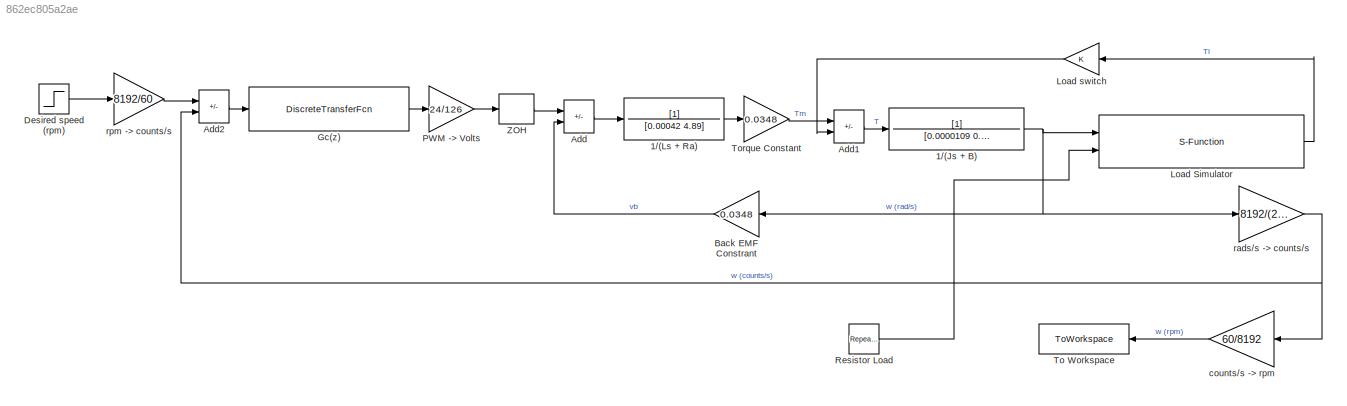
MODEL slx_862ec805a2ae
KIND model
CONFIG AbsTol = auto
CONFIG EnableMultiTasking = off
CONFIG FixedStep = auto
CONFIG MaxStep = auto
CONFIG MinStep = auto
CONFIG RelTol = 1e-3
CONFIG SampleTimeConstraint = Unconstrained
CONFIG Solver = VariableStepAuto
CONFIG SolverName = VariableStepAuto
CONFIG StartTime = 0.0
CONFIG StopTime = 9
BLOCK [TransferFcn] 1//(Js + B)
  Denominator = [0.0000109 0.0000464]
BLOCK [TransferFcn] 1//(Ls + Ra)
  Denominator = [0.00042 4.89]
BLOCK [Sum] Add
  IconShape = rectangular
  Inputs = +-
  Ports = [2, 1]
BLOCK [Sum] Add1
  IconShape = rectangular
  Inputs = +-
  Ports = [2, 1]
BLOCK [Sum] Add2
  IconShape = rectangular
  Inputs = +-
  Ports = [2, 1]
BLOCK [Gain] Back EMF Constrant
  Gain = 0.0348
BLOCK [Step] Desired speed (rpm)
  After = 2000
  SampleTime = 0.008
  Time = 0
BLOCK [DiscreteTransferFcn] Gc(z)
  Denominator = [1 -0.9199 -0.0801]
  InputPortMap = u0
  Numerator = [0.0001434 -0.0001159 0]
  Ports = [1, 1]
BLOCK [S-Function] Load Simulator 
  CopyFcn = set_param(gcbh,'LinkStatus','none')
  EnableBusSupport = off
  FunctionName = LoadSim
  InitFcn = try, set_param(gcb,'FunctionName','LoadSim'), end
  OpenFcn = sfunctionwizard(gcbh)
  Ports = [2, 1]
  PreSaveFcn = try, set_param(gcb,'FunctionName','LoadSim'), end
  SFcnIsStateOwnerBlock = off
  SFunctionDeploymentMode = off
  SFunctionModules = LoadSim_wrapper
BLOCK [Gain] Load switch
BLOCK [Gain] PWM -> Volts
  Gain = 24/126
BLOCK [Reference] Resistor Load  REF=simulink/Sources/Repeating
Sequence
Stair
  Ports = [0, 1]
  SourceBlock = simulink/Sources/Repeating\nSequence\nStair
  SourceProductBaseCode = SL
  SourceType = Repeating Sequence Stair
BLOCK [ToWorkspace] To Workspace
  FixptAsFi = on
  MaxDataPoints = inf
  Ports = [1]
  SampleTime = -1
  SaveFormat = Timeseries
  VariableName = motorSpeed
BLOCK [Gain] Torque Constant
  Gain = 0.0348
BLOCK [ZeroOrderHold] ZOH
  SampleTime = -1
BLOCK [Gain] counts//s -> rpm
  Gain = 60/8192
BLOCK [Gain] rads//s -> counts//s
  Gain = 8192/(2*pi)
BLOCK [Gain] rpm -> counts//s
  Gain = 8192/60
NET 1//(Js + B):1 -> Back EMF Constrant:1, Load Simulator :1, rads//s -> counts//s:1
LINE 1//(Ls + Ra):1 -> Torque Constant:1
LINE Add1:1 -> 1//(Js + B):1
LINE Add2:1 -> Gc(z):1
LINE Add:1 -> 1//(Ls + Ra):1
LINE Back EMF Constrant:1 -> Add:2
LINE Desired speed (rpm):1 -> rpm -> counts//s:1
LINE Gc(z):1 -> PWM -> Volts:1
LINE Load Simulator :1 -> Load switch:1
LINE Load switch:1 -> Add1:2
LINE PWM -> Volts:1 -> ZOH:1
LINE Resistor Load:1 -> Load Simulator :2
LINE Torque Constant:1 -> Add1:1
LINE ZOH:1 -> Add:1
LINE counts//s -> rpm:1 -> To Workspace:1
NET rads//s -> counts//s:1 -> Add2:2, counts//s -> rpm:1
LINE rpm -> counts//s:1 -> Add2:1
note: NET lines group one-source signal fan-out (src -> all destinations, sorted); 1:1 wires keep LINE
